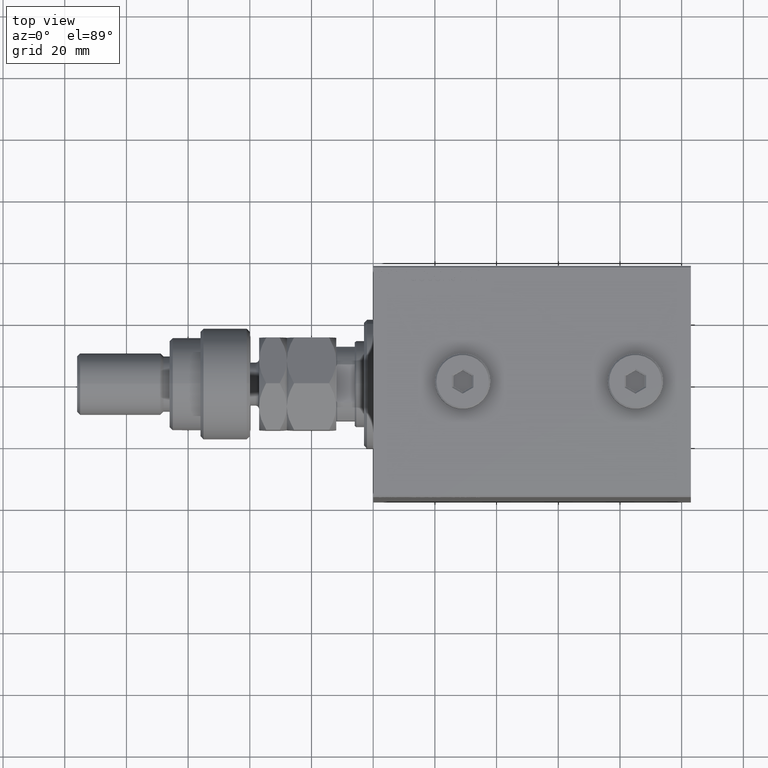
[diagram: clean part render]
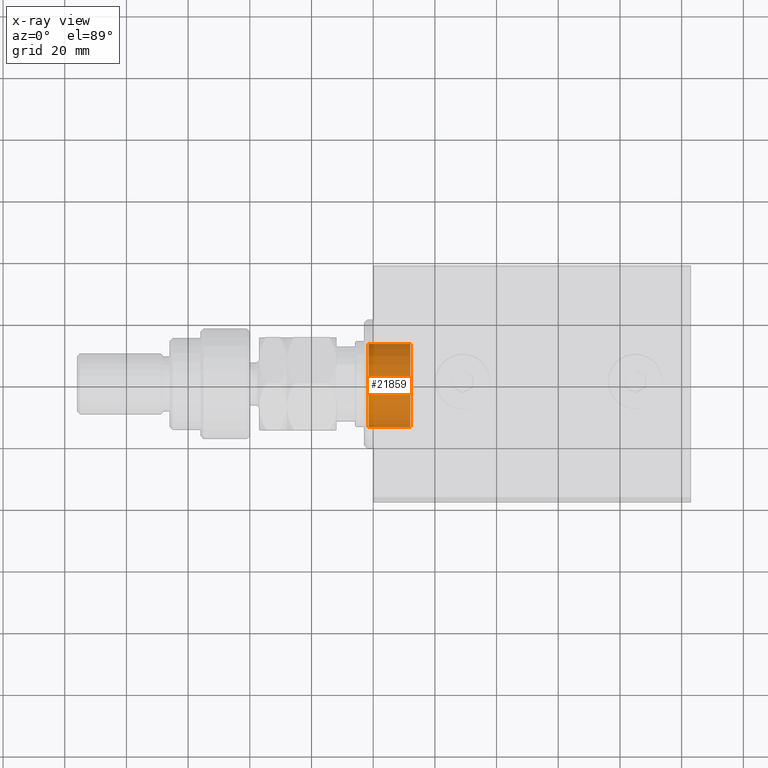
[diagram: x-ray — body ghosted, one internal face saturated and labeled with its STEP entity id]
A machine part, top view, then the same camera in x-ray: the body is ghosted and one INTERNAL B-rep face — a face not visible from any outside direction — is saturated and labeled: STEP entity #21859.
In plain terms, the highlighted cylindrical surface (partial cylindrical patch) has radius 14 mm, axis along (-1, 0, 0).
Its self-contained STEP definition (entity closure, byte-faithful):
#191 = DIRECTION ( 'NONE',  ( 1.000000000000000000, -0.000000000000000000, -0.000000000000000000 ) ) ;
#813 = DIRECTION ( 'NONE',  ( 1.000000000000000000, -0.000000000000000000, -0.000000000000000000 ) ) ;
#4705 = CARTESIAN_POINT ( 'NONE',  ( -12.00000000000000000, 0.000000000000000000, -14.00000000000000178 ) ) ;
#5606 = LINE ( 'NONE', #4705, #39326 ) ;
#7543 = DIRECTION ( 'NONE',  ( 1.000000000000000000, 0.000000000000000000, 0.000000000000000000 ) ) ;
#7658 = CYLINDRICAL_SURFACE ( 'NONE', #10880, 14.00000000000000178 ) ;
#7894 = EDGE_CURVE ( 'NONE', #44263, #22199, #5606, .T. ) ;
#10275 = ORIENTED_EDGE ( 'NONE', *, *, #27033, .T. ) ;
#10473 = CARTESIAN_POINT ( 'NONE',  ( -12.00000000000000000, 0.000000000000000000, 0.000000000000000000 ) ) ;
#10600 = VERTEX_POINT ( 'NONE', #27637 ) ;
#10880 = AXIS2_PLACEMENT_3D ( 'NONE', #41502, #30544, #37853 ) ;
#11858 = ORIENTED_EDGE ( 'NONE', *, *, #39210, .F. ) ;
#12791 = CARTESIAN_POINT ( 'NONE',  ( 1.499999999999999556, 0.000000000000000000, 0.000000000000000000 ) ) ;
#13268 = CARTESIAN_POINT ( 'NONE',  ( -12.00000000000000000, 1.714505518806294835E-15, 14.00000000000000178 ) ) ;
#16496 = AXIS2_PLACEMENT_3D ( 'NONE', #12791, #42716, #35415 ) ;
#18127 = VERTEX_POINT ( 'NONE', #13268 ) ;
#21182 = CIRCLE ( 'NONE', #16496, 14.00000000000000178 ) ;
#21859 = ADVANCED_FACE ( 'NONE', ( #26653 ), #7658, .F. ) ;
#21954 = VECTOR ( 'NONE', #191, 1000.000000000000000 ) ;
#22199 = VERTEX_POINT ( 'NONE', #40960 ) ;
#25090 = DIRECTION ( 'NONE',  ( 0.000000000000000000, 0.000000000000000000, -1.000000000000000000 ) ) ;
#25707 = AXIS2_PLACEMENT_3D ( 'NONE', #10473, #7543, #25090 ) ;
#26653 = FACE_OUTER_BOUND ( 'NONE', #36835, .T. ) ;
#27033 = EDGE_CURVE ( 'NONE', #10600, #22199, #21182, .T. ) ;
#27637 = CARTESIAN_POINT ( 'NONE',  ( 1.499999999999999556, 1.714505518806294835E-15, 14.00000000000000178 ) ) ;
#28176 = ORIENTED_EDGE ( 'NONE', *, *, #7894, .F. ) ;
#30364 = ORIENTED_EDGE ( 'NONE', *, *, #47910, .T. ) ;
#30544 = DIRECTION ( 'NONE',  ( 1.000000000000000000, -0.000000000000000000, -0.000000000000000000 ) ) ;
#35415 = DIRECTION ( 'NONE',  ( 0.000000000000000000, 0.000000000000000000, -1.000000000000000000 ) ) ;
#36354 = CARTESIAN_POINT ( 'NONE',  ( -12.00000000000000000, 0.000000000000000000, -14.00000000000000178 ) ) ;
#36835 = EDGE_LOOP ( 'NONE', ( #11858, #30364, #10275, #28176 ) ) ;
#37853 = DIRECTION ( 'NONE',  ( 0.000000000000000000, 0.000000000000000000, -1.000000000000000000 ) ) ;
#38162 = CIRCLE ( 'NONE', #25707, 14.00000000000000178 ) ;
#39210 = EDGE_CURVE ( 'NONE', #18127, #44263, #38162, .T. ) ;
#39326 = VECTOR ( 'NONE', #813, 1000.000000000000000 ) ;
#40121 = LINE ( 'NONE', #44508, #21954 ) ;
#40960 = CARTESIAN_POINT ( 'NONE',  ( 1.499999999999999556, 0.000000000000000000, -14.00000000000000178 ) ) ;
#41502 = CARTESIAN_POINT ( 'NONE',  ( -12.00000000000000000, 0.000000000000000000, 0.000000000000000000 ) ) ;
#42716 = DIRECTION ( 'NONE',  ( 1.000000000000000000, 0.000000000000000000, 0.000000000000000000 ) ) ;
#44263 = VERTEX_POINT ( 'NONE', #36354 ) ;
#44508 = CARTESIAN_POINT ( 'NONE',  ( -12.00000000000000000, 1.714505518806294835E-15, 14.00000000000000178 ) ) ;
#47910 = EDGE_CURVE ( 'NONE', #18127, #10600, #40121, .T. ) ;